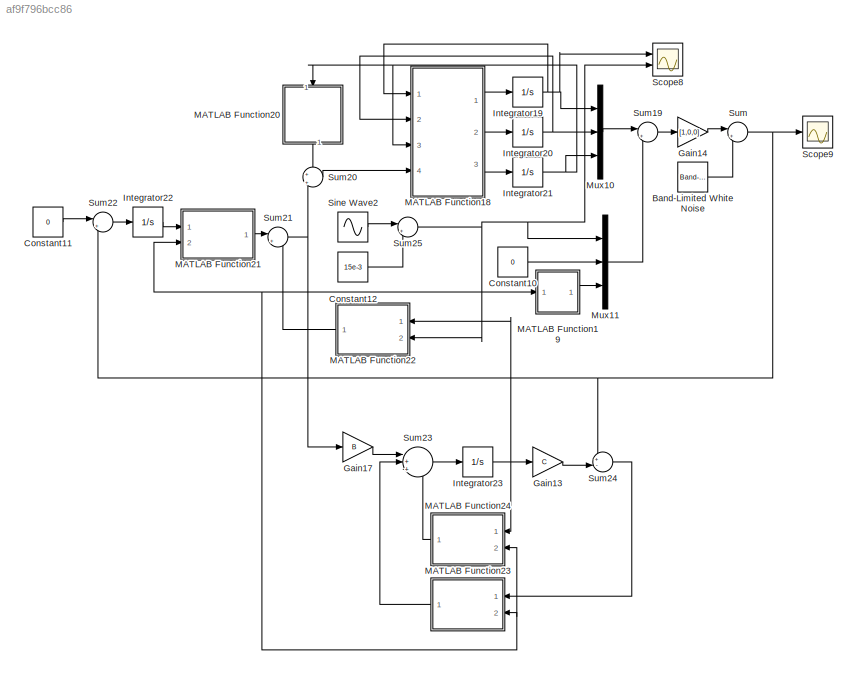
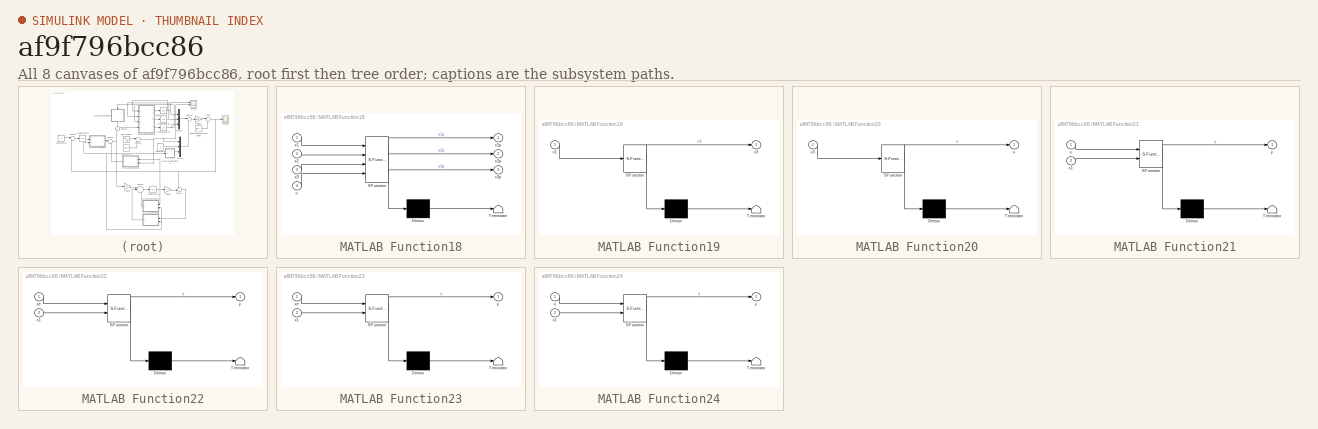
[diagram: thumbnail index - all 8 canvases of the model, root first then tree order]
MODEL slx_af9f796bcc86
KIND model
CONFIG AbsTol = auto
CONFIG EnableMultiTasking = off
CONFIG FixedStep = auto
CONFIG MaxStep = auto
CONFIG MinStep = auto
CONFIG RelTol = 1e-3
CONFIG SampleTimeConstraint = Unconstrained
CONFIG Solver = VariableStepAuto
CONFIG SolverName = VariableStepAuto
CONFIG StartTime = 0.0
CONFIG StopTime = 10.0
BLOCK [Reference] Band-Limited White Noise  REF=simulink/Sources/Band-Limited
White Noise
  Ports = [0, 1]
  SourceBlock = simulink/Sources/Band-Limited\nWhite Noise
  SourceProductBaseCode = SL
  SourceProductName = Simulink
  SourceType = Band-Limited White Noise.
BLOCK [Constant] Constant10
  Value = 0
BLOCK [Constant] Constant11
  Value = 0
BLOCK [Constant] Constant12
  Value = 15e-3
BLOCK [Gain] Gain13
  Gain = C
  Multiplication = Matrix(K*u)
  OutDataTypeStr = Inherit: Inherit via internal rule
  ParamDataTypeStr = Inherit: Inherit via internal rule
  SaturateOnIntegerOverflow = off
BLOCK [Gain] Gain14
  Gain = [1,0,0]
  Multiplication = Matrix(K*u)
  OutDataTypeStr = Inherit: Inherit via internal rule
  ParamDataTypeStr = Inherit: Inherit via internal rule
  SaturateOnIntegerOverflow = off
BLOCK [Gain] Gain17
  Gain = B
  Multiplication = Matrix(K*u)
  OutDataTypeStr = Inherit: Inherit via internal rule
  ParamDataTypeStr = Inherit: Inherit via internal rule
  SaturateOnIntegerOverflow = off
BLOCK [Integrator] Integrator19
  InitialCondition = 5e-3
  Ports = [1, 1]
BLOCK [Integrator] Integrator20
  Ports = [1, 1]
BLOCK [Integrator] Integrator21
  Ports = [1, 1]
BLOCK [Integrator] Integrator22
  Ports = [1, 1]
BLOCK [Integrator] Integrator23
  Ports = [1, 1]
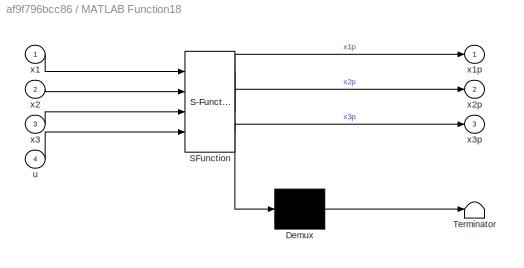
BLOCK [SubSystem] MATLAB Function18
  ErrorFcn = Stateflow.Translate.translate
  PermitHierarchicalResolution = ExplicitOnly
  Ports = [4, 3]
  RequestExecContextInheritance = off
  SFBlockType = MATLAB Function
  TreatAsAtomicUnit = on
BLOCK [Demux] MATLAB Function18/ Demux 
  Outputs = 1
  Ports = [1, 1]
BLOCK [S-Function] MATLAB Function18/ SFunction 
  EnableBusSupport = on
  FunctionName = sf_sfun
  PortCounts = [4 4]
  Ports = [4, 4]
  SFcnIsStateOwnerBlock = off
  SFunctionDeploymentMode = off
  Tag = Stateflow S-Function num4 19
BLOCK [Terminator] MATLAB Function18/ Terminator 
BLOCK [Inport] MATLAB Function18/u
  IconDisplay = Port number
  Port = 4
BLOCK [Inport] MATLAB Function18/x1
  IconDisplay = Port number
BLOCK [Outport] MATLAB Function18/x1p
  IconDisplay = Port number
BLOCK [Inport] MATLAB Function18/x2
  IconDisplay = Port number
  Port = 2
BLOCK [Outport] MATLAB Function18/x2p
  IconDisplay = Port number
  Port = 2
BLOCK [Inport] MATLAB Function18/x3
  IconDisplay = Port number
  Port = 3
BLOCK [Outport] MATLAB Function18/x3p
  IconDisplay = Port number
  Port = 3
BLOCK [SubSystem] MATLAB Function19
  ErrorFcn = Stateflow.Translate.translate
  PermitHierarchicalResolution = ExplicitOnly
  Ports = [1, 1]
  RequestExecContextInheritance = off
  SFBlockType = MATLAB Function
  TreatAsAtomicUnit = on
BLOCK [Demux] MATLAB Function19/ Demux 
  Outputs = 1
  Ports = [1, 1]
BLOCK [S-Function] MATLAB Function19/ SFunction 
  EnableBusSupport = on
  FunctionName = sf_sfun
  PortCounts = [1 2]
  Ports = [1, 2]
  SFcnIsStateOwnerBlock = off
  SFunctionDeploymentMode = off
  Tag = Stateflow S-Function num4 20
BLOCK [Terminator] MATLAB Function19/ Terminator 
BLOCK [Inport] MATLAB Function19/x1
  IconDisplay = Port number
BLOCK [Outport] MATLAB Function19/x3
  IconDisplay = Port number
BLOCK [SubSystem] MATLAB Function20
  ErrorFcn = Stateflow.Translate.translate
  PermitHierarchicalResolution = ExplicitOnly
  Ports = [1, 1]
  RequestExecContextInheritance = off
  SFBlockType = MATLAB Function
  TreatAsAtomicUnit = on
BLOCK [Demux] MATLAB Function20/ Demux 
  Outputs = 1
  Ports = [1, 1]
BLOCK [S-Function] MATLAB Function20/ SFunction 
  EnableBusSupport = on
  FunctionName = sf_sfun
  PortCounts = [1 2]
  Ports = [1, 2]
  SFcnIsStateOwnerBlock = off
  SFunctionDeploymentMode = off
  Tag = Stateflow S-Function num4 21
BLOCK [Terminator] MATLAB Function20/ Terminator 
BLOCK [Outport] MATLAB Function20/u
  IconDisplay = Port number
BLOCK [Inport] MATLAB Function20/x3
  IconDisplay = Port number
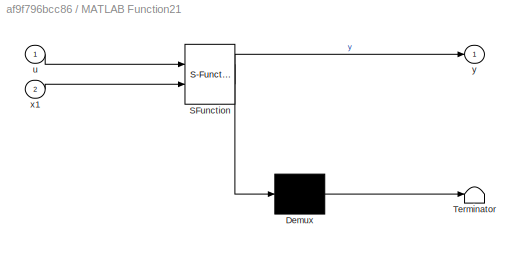
BLOCK [SubSystem] MATLAB Function21
  ErrorFcn = Stateflow.Translate.translate
  PermitHierarchicalResolution = ExplicitOnly
  Ports = [2, 1]
  RequestExecContextInheritance = off
  SFBlockType = MATLAB Function
  TreatAsAtomicUnit = on
BLOCK [Demux] MATLAB Function21/ Demux 
  Outputs = 1
  Ports = [1, 1]
BLOCK [S-Function] MATLAB Function21/ SFunction 
  EnableBusSupport = on
  FunctionName = sf_sfun
  PortCounts = [2 2]
  Ports = [2, 2]
  SFcnIsStateOwnerBlock = off
  SFunctionDeploymentMode = off
  Tag = Stateflow S-Function num4 22
BLOCK [Terminator] MATLAB Function21/ Terminator 
BLOCK [Inport] MATLAB Function21/u
  IconDisplay = Port number
BLOCK [Inport] MATLAB Function21/x1
  IconDisplay = Port number
  Port = 2
BLOCK [Outport] MATLAB Function21/y
  IconDisplay = Port number
BLOCK [SubSystem] MATLAB Function22
  ErrorFcn = Stateflow.Translate.translate
  PermitHierarchicalResolution = ExplicitOnly
  Ports = [2, 1]
  RequestExecContextInheritance = off
  SFBlockType = MATLAB Function
  TreatAsAtomicUnit = on
BLOCK [Demux] MATLAB Function22/ Demux 
  Outputs = 1
  Ports = [1, 1]
BLOCK [S-Function] MATLAB Function22/ SFunction 
  EnableBusSupport = on
  FunctionName = sf_sfun
  PortCounts = [2 2]
  Ports = [2, 2]
  SFcnIsStateOwnerBlock = off
  SFunctionDeploymentMode = off
  Tag = Stateflow S-Function num4 23
BLOCK [Terminator] MATLAB Function22/ Terminator 
BLOCK [Inport] MATLAB Function22/x1
  IconDisplay = Port number
  Port = 2
BLOCK [Inport] MATLAB Function22/xe
  IconDisplay = Port number
BLOCK [Outport] MATLAB Function22/y
  IconDisplay = Port number
BLOCK [SubSystem] MATLAB Function23
  ErrorFcn = Stateflow.Translate.translate
  PermitHierarchicalResolution = ExplicitOnly
  Ports = [2, 1]
  RequestExecContextInheritance = off
  SFBlockType = MATLAB Function
  TreatAsAtomicUnit = on
BLOCK [Demux] MATLAB Function23/ Demux 
  Outputs = 1
  Ports = [1, 1]
BLOCK [S-Function] MATLAB Function23/ SFunction 
  EnableBusSupport = on
  FunctionName = sf_sfun
  PortCounts = [2 2]
  Ports = [2, 2]
  SFcnIsStateOwnerBlock = off
  SFunctionDeploymentMode = off
  Tag = Stateflow S-Function num4 24
BLOCK [Terminator] MATLAB Function23/ Terminator 
BLOCK [Inport] MATLAB Function23/x1
  IconDisplay = Port number
  Port = 2
BLOCK [Inport] MATLAB Function23/xe
  IconDisplay = Port number
BLOCK [Outport] MATLAB Function23/y
  IconDisplay = Port number
BLOCK [SubSystem] MATLAB Function24
  ErrorFcn = Stateflow.Translate.translate
  PermitHierarchicalResolution = ExplicitOnly
  Ports = [2, 1]
  RequestExecContextInheritance = off
  SFBlockType = MATLAB Function
  TreatAsAtomicUnit = on
BLOCK [Demux] MATLAB Function24/ Demux 
  Outputs = 1
  Ports = [1, 1]
BLOCK [S-Function] MATLAB Function24/ SFunction 
  EnableBusSupport = on
  FunctionName = sf_sfun
  PortCounts = [2 2]
  Ports = [2, 2]
  SFcnIsStateOwnerBlock = off
  SFunctionDeploymentMode = off
  Tag = Stateflow S-Function num4 25
BLOCK [Terminator] MATLAB Function24/ Terminator 
BLOCK [Inport] MATLAB Function24/u
  IconDisplay = Port number
BLOCK [Inport] MATLAB Function24/x1
  IconDisplay = Port number
  Port = 2
BLOCK [Outport] MATLAB Function24/y
  IconDisplay = Port number
BLOCK [Mux] Mux10
  DisplayOption = bar
  Inputs = 3
  Ports = [3, 1]
BLOCK [Mux] Mux11
  DisplayOption = bar
  Inputs = 3
  Ports = [3, 1]
BLOCK [Scope] Scope8
  Floating = off
  NumInputPorts = 2
  Ports = [2]
  ScopeSpecificationString = Simulink.scopes.TimeScopeBlockCfg('CurrentConfiguration', extmgr.ConfigurationSet(extmgr.Configuration('Core','General UI',true,'FigureColor',[0.8 0.8 0.8]),extmgr.Configuration('Core','Source UI',true),extmgr.Configuration('Sources','WiredSimulink',true,'DataLoggingVariableName','ScopeData8'),extmgr.Configuration('Visuals','Time Domain',true,'SerializedDisplays',{struct('MinYLimReal','-0.00039','...<+1622ch>
BLOCK [Scope] Scope9
  Floating = off
  NumInputPorts = 1
  Ports = [1]
  ScopeSpecificationString = Simulink.scopes.TimeScopeBlockCfg('CurrentConfiguration', extmgr.ConfigurationSet(extmgr.Configuration('Core','General UI',true,'FigureColor',[0.8 0.8 0.8]),extmgr.Configuration('Core','Source UI',true),extmgr.Configuration('Sources','WiredSimulink',true,'DataLoggingVariableName','ScopeData9'),extmgr.Configuration('Visuals','Time Domain',true,'SerializedDisplays',{struct('MinYLimReal','-0.00604','...<+1490ch>
BLOCK [Sin] Sine Wave2
  Amplitude = 10e-3
  Frequency = 2
  Phase = 3.1+pi/2
  Ports = [0, 1]
  SampleTime = 0
BLOCK [Sum] Sum
  IconShape = round
  InputSameDT = off
  Inputs = |++
  OutDataTypeStr = Inherit: Inherit via internal rule
  Ports = [2, 1]
  SaturateOnIntegerOverflow = off
BLOCK [Sum] Sum19
  IconShape = round
  InputSameDT = off
  Inputs = |+-
  OutDataTypeStr = Inherit: Inherit via internal rule
  Ports = [2, 1]
  SaturateOnIntegerOverflow = off
BLOCK [Sum] Sum20
  IconShape = round
  InputSameDT = off
  Inputs = +|+
  OutDataTypeStr = Inherit: Inherit via internal rule
  Ports = [2, 1]
  SaturateOnIntegerOverflow = off
BLOCK [Sum] Sum21
  IconShape = round
  InputSameDT = off
  Inputs = |+-
  OutDataTypeStr = Inherit: Inherit via internal rule
  Ports = [2, 1]
  SaturateOnIntegerOverflow = off
BLOCK [Sum] Sum22
  IconShape = round
  InputSameDT = off
  Inputs = |+-
  OutDataTypeStr = Inherit: Inherit via internal rule
  Ports = [2, 1]
  SaturateOnIntegerOverflow = off
BLOCK [Sum] Sum23
  IconShape = round
  InputSameDT = off
  Inputs = |+++
  OutDataTypeStr = Inherit: Inherit via internal rule
  Ports = [3, 1]
  SaturateOnIntegerOverflow = off
BLOCK [Sum] Sum24
  IconShape = round
  InputSameDT = off
  Inputs = +-|
  OutDataTypeStr = Inherit: Inherit via internal rule
  Ports = [2, 1]
  SaturateOnIntegerOverflow = off
BLOCK [Sum] Sum25
  IconShape = round
  InputSameDT = off
  Inputs = |++
  OutDataTypeStr = Inherit: Inherit via internal rule
  Ports = [2, 1]
  SaturateOnIntegerOverflow = off
LINE Band-Limited White Noise:1 -> Sum:2
LINE Constant10:1 -> Mux11:2
LINE Constant11:1 -> Sum22:1
LINE Constant12:1 -> Sum25:2
LINE Gain13:1 -> Sum24:2
LINE Gain14:1 -> Sum:1
LINE Gain17:1 -> Sum23:1
NET Integrator19:1 -> MATLAB Function18:1, Mux10:1, Scope8:1
NET Integrator20:1 -> MATLAB Function18:2, Mux10:2
NET Integrator21:1 -> MATLAB Function18:3, MATLAB Function20:1, Mux10:3
LINE Integrator22:1 -> MATLAB Function21:1
NET Integrator23:1 -> Gain13:1, MATLAB Function22:1, MATLAB Function24:1
LINE MATLAB Function18:1 -> Integrator19:1
LINE MATLAB Function18:2 -> Integrator20:1
LINE MATLAB Function18:3 -> Integrator21:1
LINE MATLAB Function19:1 -> Mux11:3
LINE MATLAB Function20:1 -> Sum20:1
LINE MATLAB Function21:1 -> Sum21:1
LINE MATLAB Function22:1 -> Sum21:2
LINE MATLAB Function23:1 -> Sum23:2
LINE MATLAB Function24:1 -> Sum23:3
LINE Mux10:1 -> Sum19:1
LINE Mux11:1 -> Sum19:2
LINE Sine Wave2:1 -> Sum25:1
LINE Sum19:1 -> Gain14:1
LINE Sum20:1 -> MATLAB Function18:4
NET Sum21:1 -> Gain17:1, Sum20:2
LINE Sum22:1 -> Integrator22:1
LINE Sum23:1 -> Integrator23:1
LINE Sum24:1 -> MATLAB Function23:1
NET Sum25:1 -> MATLAB Function19:1, MATLAB Function21:2, MATLAB Function22:2, MATLAB Function23:2, MATLAB Function24:2, Mux11:1, Scope8:2
NET Sum:1 -> Scope9:1, Sum22:2, Sum24:1
note: NET lines group one-source signal fan-out (src -> all destinations, sorted); 1:1 wires keep LINE
CHART MATLAB Function18 states=1 transitions=1
  STATE_LABEL 'eML_blk_kernel()'
  STATE_LABEL 'SCRIPT:\nfunction [x1p,x2p,x3p] = planta(x1,x2,x3,u)\nc=0.1;\nm=0.01;\nL=100e-3;\nr=10;\ng=9.81;\n\nx1p=x2;\nx2p=g-(c/m)*((x3^2)/x1);\nx3p=-(r/L)*x3+(1/L)*u;\n\n\n'
CHART MATLAB Function19 states=1 transitions=1
  STATE_LABEL 'eML_blk_kernel()'
  STATE_LABEL 'SCRIPT:\nfunction x3  = fcn(x1)\nc=1\nm=0.1\nL=0.01\nr=1\ng=9.81\n\nx3=sqrt((m*g*x1)/c);\n\n\n'
CHART MATLAB Function20 states=1 transitions=1
  STATE_LABEL 'eML_blk_kernel()'
  STATE_LABEL 'SCRIPT:\nfunction u  = u(x3)\nc=1\nm=0.1\nL=0.01\nr=1\ng=9.81\n\nu=r*x3;\n\n\n'
CHART MATLAB Function21 states=1 transitions=1
  STATE_LABEL 'eML_blk_kernel()'
  STATE_LABEL 'SCRIPT:\nfunction y = ki(u,x1)\n\nk=-((1.0449e3)*x1)/(sqrt(0.981*x1));\ny = k*u;\n\n'
CHART MATLAB Function22 states=1 transitions=1
  STATE_LABEL 'eML_blk_kernel()'
  STATE_LABEL 'SCRIPT:\nfunction y  = Kservo(xe,x1)\n\nk1=-((2.9104e-15)*((6.1932e16)*x1+(1.6179e15)))/(sqrt(0.981*x1));\nk2=-((9.0949e-17)*((1.6551e17)*x1+(5.3931e14)))/(sqrt(0.981*x1));\nk3=-0.4;\nk=[k1,k2,k3];\ny = k*xe;\n'
CHART MATLAB Function23 states=1 transitions=1
  STATE_LABEL 'eML_blk_kernel()'
  STATE_LABEL 'SCRIPT:\nfunction y  = Kobs(xe,x1)\n\nk1=2700;\nk2=(1.8626e-11*((8.8934e16)*x1+5.2667e11))/x1;\nk3=-(2.437e7*x1)/(sqrt(0.981*x1));\nk=[k1;k2;k3];\ny = k*xe;\n'
CHART MATLAB Function24 states=1 transitions=1
  STATE_LABEL 'eML_blk_kernel()'
  STATE_LABEL 'SCRIPT:\nfunction y  = Amat(u,x1)\n\nA=[0,1,0;(9.8100/x1),0,(-(20*sqrt(0.981*x1))/x1);0,0,-100];\ny = A*u;\n'
